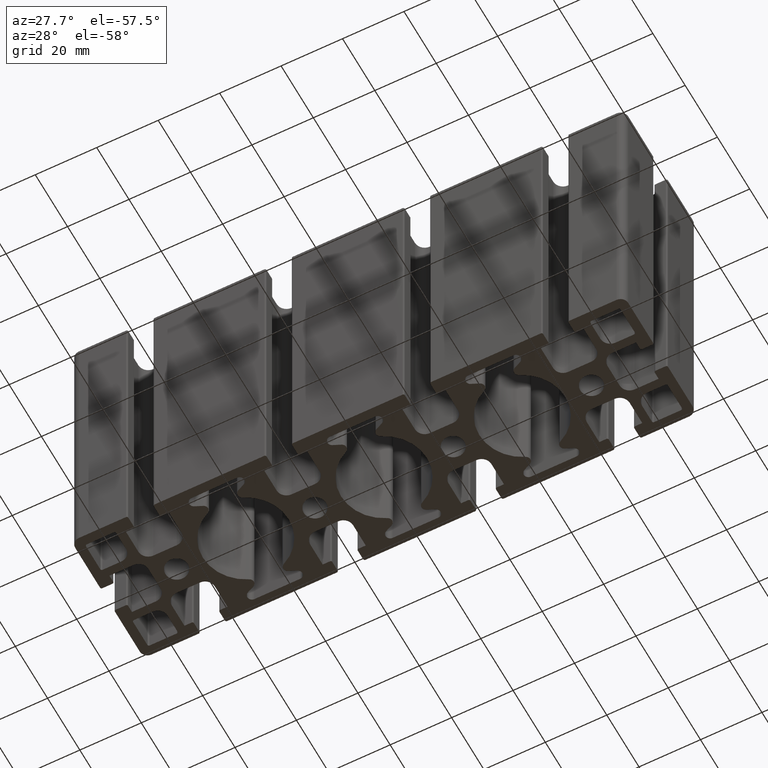
[diagram: clean part render]
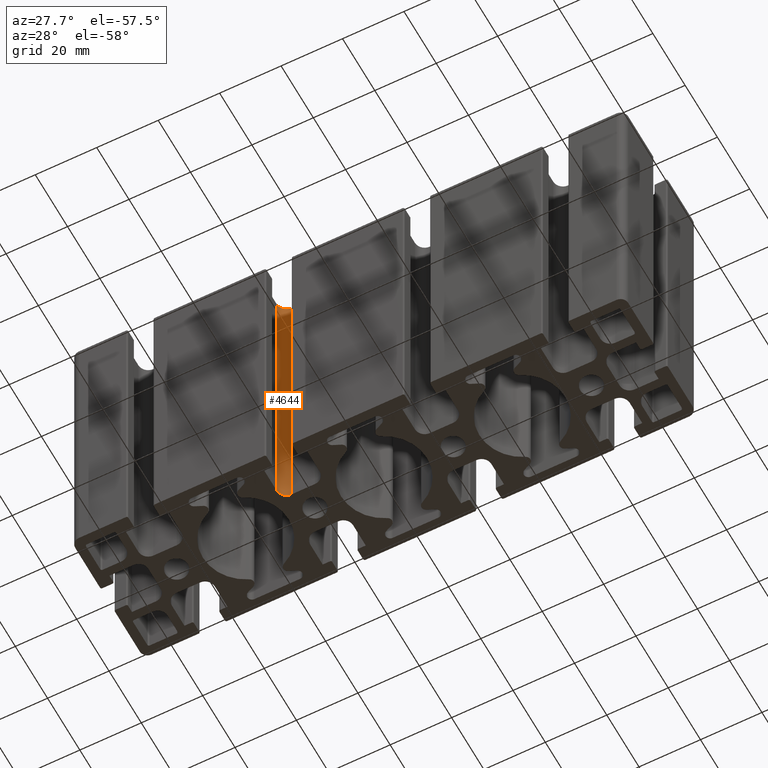
[diagram: same view with one face highlighted and labeled with its STEP entity id]
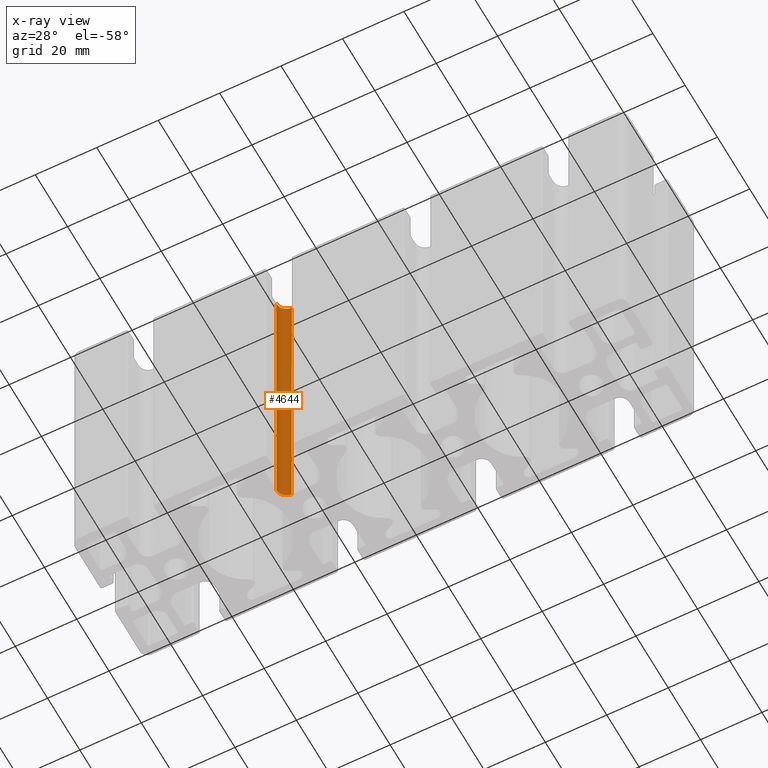
[diagram: x-ray of the same camera — body ghosted, the highlighted face saturated]
A machine part, auxiliary view. The second image highlights one B-rep face of the part: STEP entity #4644.
The next image is the same camera in x-ray: the body ghosted, the highlighted face saturated — about 0% of this face is hidden behind the body in this view.
In plain terms, the highlighted cylindrical surface (edge-blend (fillet) strip) has radius 3.2 mm, axis along (0, 0, 1).
Its self-contained STEP definition (entity closure, byte-faithful):
#340=FACE_OUTER_BOUND('',#578,.T.);
#578=EDGE_LOOP('',(#3675,#3676,#3677,#3678));
#1006=LINE('',#7626,#1470);
#1007=LINE('',#7632,#1471);
#1470=VECTOR('',#6238,100.);
#1471=VECTOR('',#6245,100.);
#1765=CIRCLE('',#5063,3.20000000000004);
#1766=CIRCLE('',#5064,3.20000000000004);
#2169=VERTEX_POINT('',#7622);
#2170=VERTEX_POINT('',#7624);
#2171=VERTEX_POINT('',#7628);
#2172=VERTEX_POINT('',#7630);
#2808=EDGE_CURVE('',#2169,#2170,#1006,.T.);
#2809=EDGE_CURVE('',#2169,#2171,#1765,.T.);
#2810=EDGE_CURVE('',#2172,#2170,#1766,.T.);
#2811=EDGE_CURVE('',#2171,#2172,#1007,.T.);
#3675=ORIENTED_EDGE('',*,*,#2809,.F.);
#3676=ORIENTED_EDGE('',*,*,#2808,.T.);
#3677=ORIENTED_EDGE('',*,*,#2810,.F.);
#3678=ORIENTED_EDGE('',*,*,#2811,.F.);
#4442=CYLINDRICAL_SURFACE('',#5062,3.20000000000004);
#4644=ADVANCED_FACE('',(#340),#4442,.F.);
#5062=AXIS2_PLACEMENT_3D('',#7627,#6239,#6240);
#5063=AXIS2_PLACEMENT_3D('',#7629,#6241,#6242);
#5064=AXIS2_PLACEMENT_3D('',#7631,#6243,#6244);
#6238=DIRECTION('',(0.,0.,1.));
#6239=DIRECTION('center_axis',(0.,0.,1.));
#6240=DIRECTION('ref_axis',(-1.11022302462514E-14,1.,0.));
#6241=DIRECTION('center_axis',(0.,0.,1.));
#6242=DIRECTION('ref_axis',(-1.11022302462514E-14,1.,0.));
#6243=DIRECTION('center_axis',(0.,0.,-1.));
#6244=DIRECTION('ref_axis',(-1.11022302462514E-14,1.,0.));
#6245=DIRECTION('',(0.,0.,1.));
#7622=CARTESIAN_POINT('',(-26.3000000000002,-7.20000000000008,0.));
#7624=CARTESIAN_POINT('',(-26.3000000000002,-7.20000000000008,100.));
#7626=CARTESIAN_POINT('',(-26.3000000000002,-7.20000000000008,0.));
#7627=CARTESIAN_POINT('Origin',(-26.3000000000001,-10.4000000000001,0.));
#7628=CARTESIAN_POINT('',(-29.5000000000002,-10.4000000000001,0.));
#7629=CARTESIAN_POINT('Origin',(-26.3000000000001,-10.4000000000001,0.));
#7630=CARTESIAN_POINT('',(-29.5000000000002,-10.4000000000001,100.));
#7631=CARTESIAN_POINT('Origin',(-26.3000000000001,-10.4000000000001,100.));
#7632=CARTESIAN_POINT('',(-29.5000000000002,-10.4000000000001,0.));